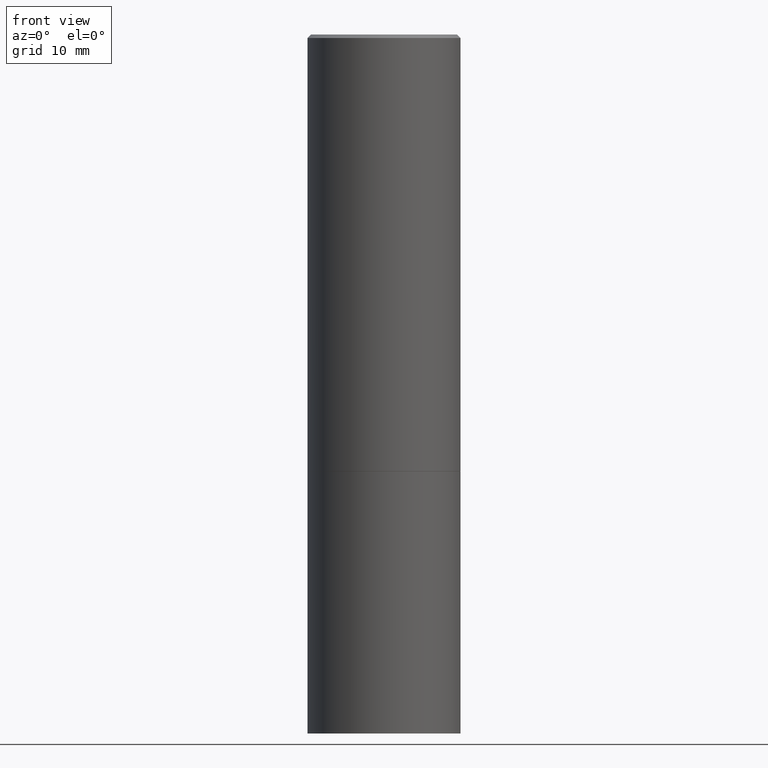
[diagram: clean part render]
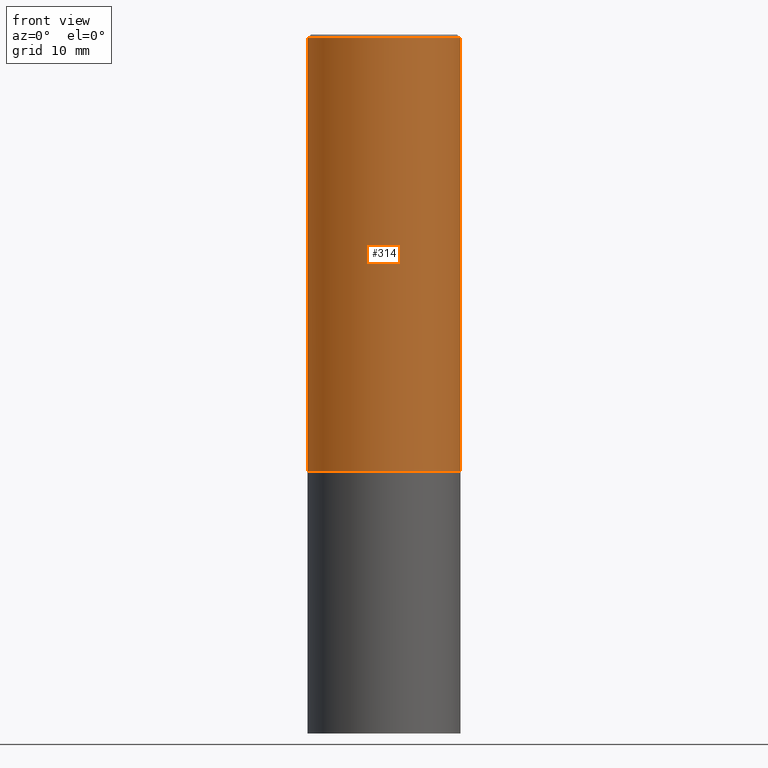
[diagram: same view with one face highlighted and labeled with its STEP entity id]
A machine part, front view. The second image highlights one B-rep face of the part: STEP entity #314.
In plain terms, the highlighted cylindrical surface (partial cylindrical patch) has radius 11.1125 mm, axis along (-0, 0, 1).
Its self-contained STEP definition (entity closure, byte-faithful):
#11 = DIRECTION ( 'NONE',  ( -2.445468806185136597E-29, 3.491481338843145583E-15, 1.000000000000000000 ) ) ;
#12 = DIRECTION ( 'NONE',  ( 1.000000000000000000, -6.982962677686266711E-15, 0.000000000000000000 ) ) ;
#23 = FACE_OUTER_BOUND ( 'NONE', #63, .T. ) ;
#50 = EDGE_CURVE ( 'NONE', #258, #287, #361, .T. ) ;
#61 = ORIENTED_EDGE ( 'NONE', *, *, #156, .T. ) ;
#63 = EDGE_LOOP ( 'NONE', ( #178, #61, #174, #93 ) ) ;
#67 = DIRECTION ( 'NONE',  ( -2.445468806185136597E-29, 3.491481338843145583E-15, 1.000000000000000000 ) ) ;
#68 = VECTOR ( 'NONE', #125, 39.37007874015748143 ) ;
#79 = CARTESIAN_POINT ( 'NONE',  ( 0.4374999999999997780, -3.055046171487740108E-15, 2.133327339410720928E-29 ) ) ;
#80 = CARTESIAN_POINT ( 'NONE',  ( 0.000000000000000000, 0.000000000000000000, 0.000000000000000000 ) ) ;
#82 = CARTESIAN_POINT ( 'NONE',  ( 0.4374999999999997224, -3.071297500801906385E-15, -0.02000000000000009756 ) ) ;
#91 = VERTEX_POINT ( 'NONE', #126 ) ;
#93 = ORIENTED_EDGE ( 'NONE', *, *, #50, .F. ) ;
#106 = AXIS2_PLACEMENT_3D ( 'NONE', #80, #250, #136 ) ;
#124 = CARTESIAN_POINT ( 'NONE',  ( 4.890937612370297681E-31, -6.982962677686324889E-17, -0.02000000000000009756 ) ) ;
#125 = DIRECTION ( 'NONE',  ( -2.445468806185136877E-29, 3.491481338843145188E-15, 1.000000000000000000 ) ) ;
#126 = CARTESIAN_POINT ( 'NONE',  ( 0.4374999999999998335, -1.178025803725676362E-14, -2.499000000000000110 ) ) ;
#134 = CYLINDRICAL_SURFACE ( 'NONE', #106, 0.4374999999999997780 ) ;
#136 = DIRECTION ( 'NONE',  ( 1.000000000000000000, -6.982962677686266711E-15, 4.876176775795935793E-29 ) ) ;
#148 = CARTESIAN_POINT ( 'NONE',  ( 6.111226546656657010E-29, -8.725211865769021935E-15, -2.499000000000000110 ) ) ;
#149 = LINE ( 'NONE', #272, #68 ) ;
#156 = EDGE_CURVE ( 'NONE', #200, #91, #179, .T. ) ;
#160 = EDGE_CURVE ( 'NONE', #200, #258, #149, .T. ) ;
#172 = VECTOR ( 'NONE', #191, 39.37007874015748143 ) ;
#174 = ORIENTED_EDGE ( 'NONE', *, *, #298, .T. ) ;
#178 = ORIENTED_EDGE ( 'NONE', *, *, #160, .F. ) ;
#179 = CIRCLE ( 'NONE', #227, 0.4374999999999998335 ) ;
#190 = AXIS2_PLACEMENT_3D ( 'NONE', #124, #67, #12 ) ;
#191 = DIRECTION ( 'NONE',  ( -2.445468806185136877E-29, 3.491481338843145188E-15, 1.000000000000000000 ) ) ;
#192 = CARTESIAN_POINT ( 'NONE',  ( -0.4374999999999997224, 2.985216544710876416E-15, -0.02000000000000009756 ) ) ;
#200 = VERTEX_POINT ( 'NONE', #307 ) ;
#227 = AXIS2_PLACEMENT_3D ( 'NONE', #148, #11, #321 ) ;
#250 = DIRECTION ( 'NONE',  ( -2.445468806185136597E-29, 3.491481338843145583E-15, 1.000000000000000000 ) ) ;
#258 = VERTEX_POINT ( 'NONE', #192 ) ;
#272 = CARTESIAN_POINT ( 'NONE',  ( -0.4374999999999997780, 3.108624468950436735E-15, -2.152034101986520123E-29 ) ) ;
#287 = VERTEX_POINT ( 'NONE', #82 ) ;
#298 = EDGE_CURVE ( 'NONE', #91, #287, #329, .T. ) ;
#307 = CARTESIAN_POINT ( 'NONE',  ( -0.4374999999999998335, -1.288896277322503515E-15, -2.499000000000000110 ) ) ;
#314 = ADVANCED_FACE ( 'NONE', ( #23 ), #134, .T. ) ;
#321 = DIRECTION ( 'NONE',  ( 1.000000000000000000, -6.982962677686267499E-15, 0.000000000000000000 ) ) ;
#329 = LINE ( 'NONE', #79, #172 ) ;
#361 = CIRCLE ( 'NONE', #190, 0.4374999999999997224 ) ;